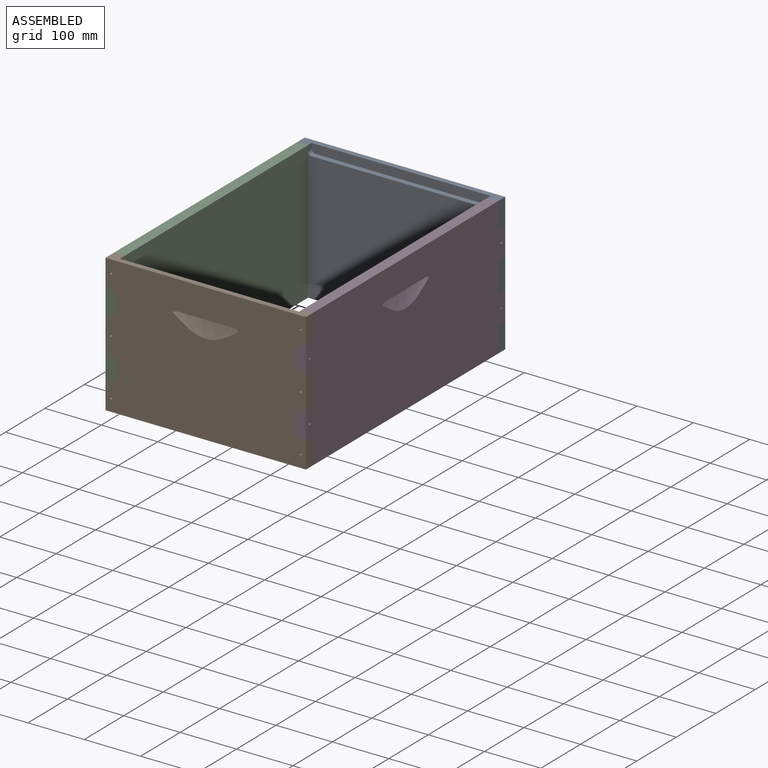
[diagram: assembled view]
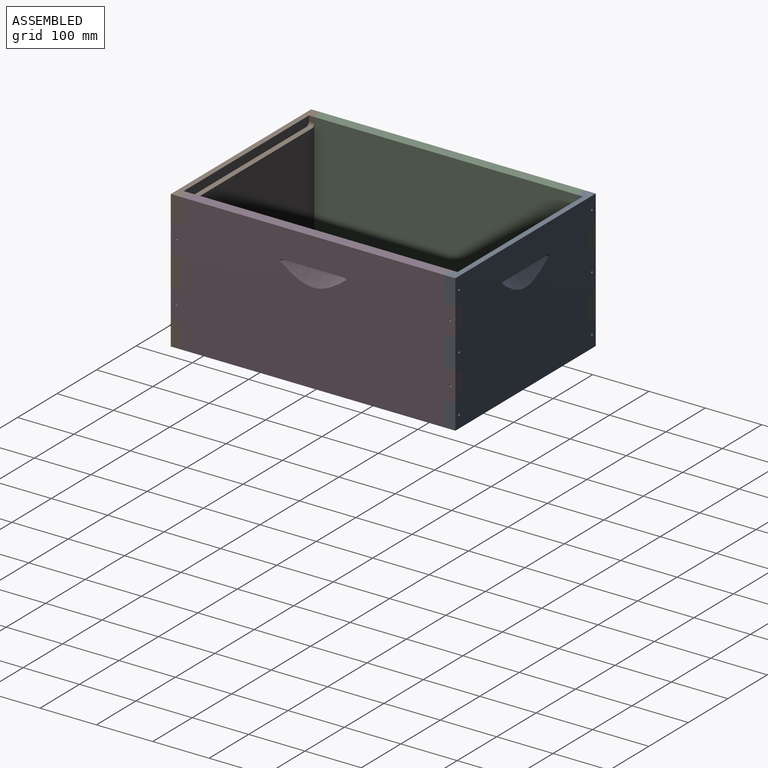
[diagram: assembled view, second angle]
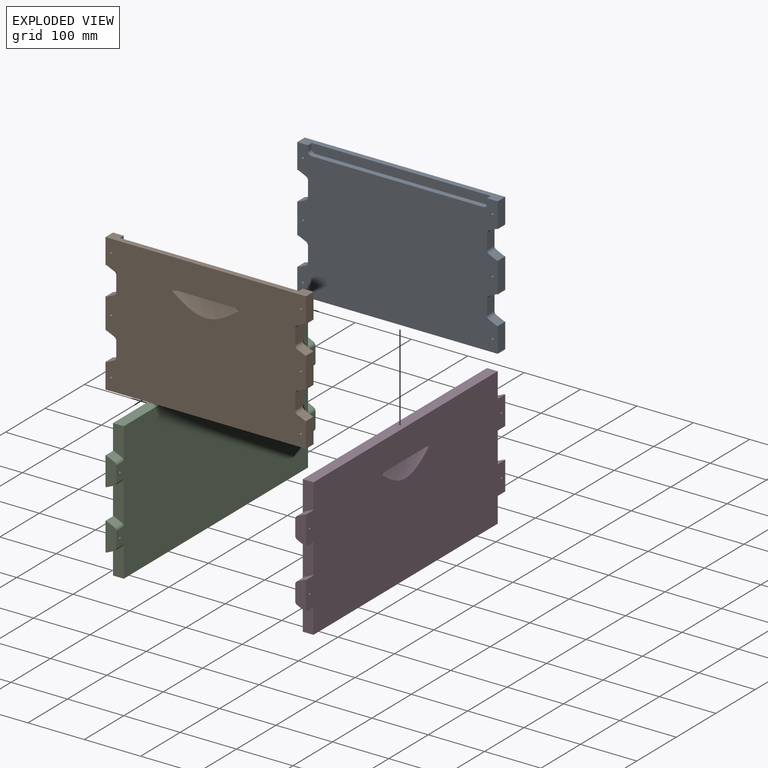
[diagram: exploded view]
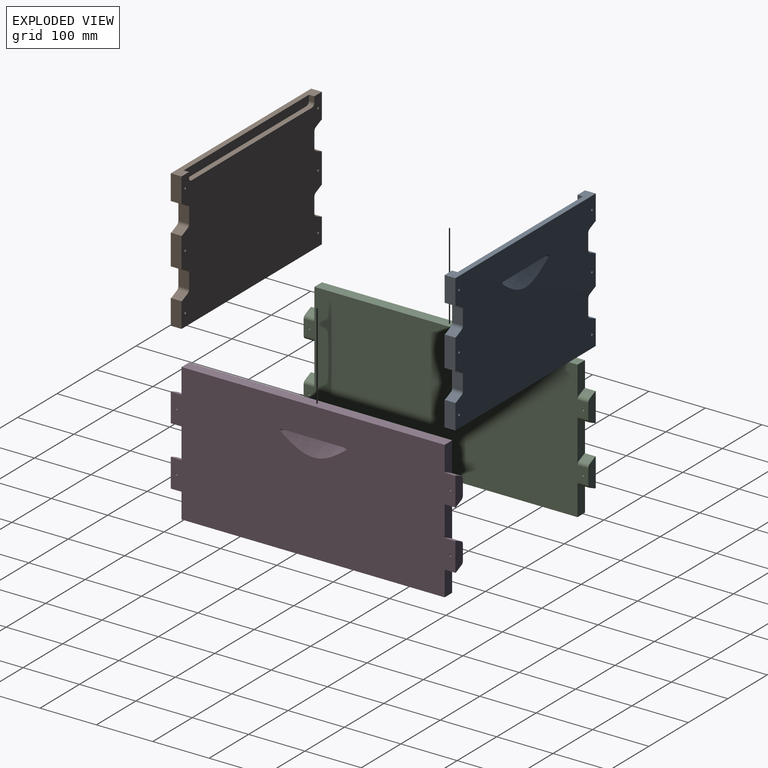
[diagram: exploded view, second angle]
ASSEMBLY  parts=4 mates=3
PART A: 61 faces, bbox 355.6x28.9x244.5 mm
  f0: plane 355.6x244.48mm, normal (0,1,0), area 81110.8mm2, adj f1,f2,f3,f4,f5,f6,f7,f8
  f1: plane 355.6x19.05mm, normal (0,0,1), area 3750mm2, adj f0,f2,f3,f45,f47,f48,f51
  f2: plane 44.45x19.05mm, normal (1,0,0), area 846.8mm2, adj f0,f1,f44,f45
  f3: plane 44.45x19.05mm, normal (-1,0,0), area 846.8mm2, adj f0,f1,f4,f45
  f4: plane 19.05x0.21mm, normal (0,0,-1), area 4mm2, adj f0,f3,f5,f45
  f5: cylinder r=6.35mm len=19.05mm, axis (0,-1,0), area 51.6mm2, adj f0,f4,f6,f45
  f6: plane 19.05x12.49mm, normal (-0.41,0,-0.91), area 261.3mm2, adj f0,f5,f7,f45
  f7: cylinder r=6.35mm len=19.05mm, axis (0,-1,0), area 138.4mm2, adj f0,f6,f8,f45
  f8: plane 26.75x19.05mm, normal (-1,0,0), area 509.5mm2, adj f0,f7,f9,f45
  f9: cylinder r=6.35mm len=19.05mm, axis (0,-1,0), area 138.4mm2, adj f0,f8,f10,f45
  f10: plane 19.05x12.49mm, normal (-0.41,0,0.91), area 261.3mm2, adj f0,f9,f11,f45
  f11: cylinder r=6.35mm len=19.05mm, axis (0,-1,0), area 51.6mm2, adj f0,f10,f12,f45
  f12: plane 19.05x0.21mm, normal (0,0,1), area 4mm2, adj f0,f11,f13,f45
  f13: plane 53.98x19.05mm, normal (-1,0,0), area 1028.2mm2, adj f0,f12,f14,f45
  f14: plane 19.05x0.21mm, normal (0,0,-1), area 4mm2, adj f0,f13,f15,f45
  f15: cylinder r=6.35mm len=19.05mm, axis (0,-1,0), area 51.6mm2, adj f0,f14,f16,f45
  f16: plane 19.05x12.49mm, normal (-0.41,0,-0.91), area 261.3mm2, adj f0,f15,f17,f45
  f17: cylinder r=6.35mm len=19.05mm, axis (0,-1,0), area 138.4mm2, adj f0,f16,f18,f45
  f18: plane 26.75x19.05mm, normal (-1,0,0), area 509.5mm2, adj f0,f17,f19,f45
  f19: cylinder r=6.35mm len=19.05mm, axis (0,-1,0), area 138.4mm2, adj f0,f18,f20,f45
  f20: plane 19.05x12.49mm, normal (-0.41,0,0.91), area 261.3mm2, adj f0,f19,f21,f45
  f21: cylinder r=6.35mm len=19.05mm, axis (0,-1,0), area 51.6mm2, adj f0,f20,f22,f45
  f22: plane 19.05x0.21mm, normal (0,0,1), area 4mm2, adj f0,f21,f23,f45
  f23: plane 44.45x19.05mm, normal (-1,0,0), area 846.8mm2, adj f0,f22,f24,f45
  f24: plane 355.6x19.05mm, normal (0,0,-1), area 6774.2mm2, adj f0,f23,f25,f45
  f25: plane 44.45x19.05mm, normal (1,0,0), area 846.8mm2, adj f0,f24,f26,f45
  f26: plane 19.05x0.21mm, normal (0,0,1), area 4mm2, adj f0,f25,f27,f45
  f27: cylinder r=6.35mm len=19.05mm, axis (0,-1,0), area 51.6mm2, adj f0,f26,f28,f45
  f28: plane 19.05x12.49mm, normal (0.41,0,0.91), area 261.3mm2, adj f0,f27,f29,f45
  f29: cylinder r=6.35mm len=19.05mm, axis (0,-1,0), area 138.4mm2, adj f0,f28,f30,f45
  f30: plane 26.75x19.05mm, normal (1,0,0), area 509.5mm2, adj f0,f29,f31,f45
  f31: cylinder r=6.35mm len=19.05mm, axis (0,-1,0), area 138.4mm2, adj f0,f30,f32,f45
  f32: plane 19.05x12.49mm, normal (0.41,0,-0.91), area 261.3mm2, adj f0,f31,f33,f45
  f33: cylinder r=6.35mm len=19.05mm, axis (0,-1,0), area 51.6mm2, adj f0,f32,f34,f45
  f34: plane 19.05x0.21mm, normal (0,0,-1), area 4mm2, adj f0,f33,f35,f45
  f35: plane 53.98x19.05mm, normal (1,0,0), area 1028.2mm2, adj f0,f34,f36,f45
  f36: plane 19.05x0.21mm, normal (0,0,1), area 4mm2, adj f0,f35,f37,f45
  f37: cylinder r=6.35mm len=19.05mm, axis (0,-1,0), area 51.6mm2, adj f0,f36,f38,f45
  f38: plane 19.05x12.49mm, normal (0.41,0,0.91), area 261.3mm2, adj f0,f37,f39,f45
  f39: cylinder r=6.35mm len=19.05mm, axis (0,-1,0), area 138.4mm2, adj f0,f38,f40,f45
  f40: plane 26.75x19.05mm, normal (1,0,0), area 509.5mm2, adj f0,f39,f41,f45
  f41: cylinder r=6.35mm len=19.05mm, axis (0,-1,0), area 138.4mm2, adj f0,f40,f42,f45
  f42: plane 19.05x12.49mm, normal (0.41,0,-0.91), area 261.3mm2, adj f0,f41,f43,f45
  f43: cylinder r=6.35mm len=19.05mm, axis (0,-1,0), area 51.6mm2, adj f0,f42,f44,f45
  f44: plane 19.05x0.21mm, normal (0,0,-1), area 4mm2, adj f0,f2,f43,f45
  f45: plane 355.6x244.48mm, normal (0,-1,0), area 78545.8mm2, adj f1,f2,f3,f4,f5,f6,f7,f8
  f46: cylinder r=6.35mm len=9.53mm, axis (0,-1,0), area 95mm2, adj f45,f47,f50,f51
  f47: plane 9.53x9.53mm, normal (-1,0,0), area 90.7mm2, adj f1,f45,f46,f51
  f48: plane 9.53x9.53mm, normal (1,0,0), area 90.7mm2, adj f1,f45,f49,f51
  f49: cylinder r=6.35mm len=9.53mm, axis (0,-1,0), area 95mm2, adj f45,f48,f50,f51
  f50: plane 304.8x9.53mm, normal (0,0,1), area 2903.2mm2, adj f45,f46,f49,f51
  f51: plane 317.5x15.88mm, normal (0,-1,0), area 5023mm2, adj f1,f46,f47,f48,f49,f50
  f52: cylinder r=1.98mm len=19.05mm, axis (0,-1,0), area 237.5mm2, adj f0,f45
  f53: cylinder r=1.98mm len=19.05mm, axis (0,-1,0), area 237.5mm2, adj f0,f45
  f54: cylinder r=1.98mm len=19.05mm, axis (0,-1,0), area 237.5mm2, adj f0,f45
  f55: cylinder r=1.98mm len=19.05mm, axis (0,-1,0), area 237.5mm2, adj f0,f45
  f56: cylinder r=1.98mm len=19.05mm, axis (0,-1,0), area 237.5mm2, adj f0,f45
  f57: cylinder r=1.98mm len=19.05mm, axis (0,-1,0), area 237.5mm2, adj f0,f45
  f58: plane 118.49x12.7mm, normal (0,-0.5,-0.87), area 1172.5mm2, adj f0,f59
  f59: cone r=127mm half-angle=30deg, axis (0,0.5,0.87), area 390.2mm2, adj f0,f58,f60
  f60: cone r=125.41mm half-angle=50deg, axis (0,0.5,0.87), area 2880.2mm2, adj f0,f59
PART B: same geometry as A
PART C: 53 faces, bbox 28.9x504.8x244.5 mm
  f0: plane 504.83x244.48mm, normal (1,0,0), area 115465.9mm2, adj f1,f2,f4,f5,f6,f7,f8,f9
  f1: plane 56.48x19.05mm, normal (0,1,0), area 919.1mm2, adj f0,f3,f7,f38,f39,f40,f41
  f2: plane 56.48x19.05mm, normal (0,1,0), area 919.1mm2, adj f0,f3,f4,f28,f29,f30,f31
  f3: plane 504.83x244.48mm, normal (-1,0,0), area 116091.3mm2, adj f1,f2,f4,f5,f6,f7,f8,f9
  f4: plane 466.73x19.05mm, normal (0,0,1), area 8891.1mm2, adj f0,f2,f3,f5
  f5: plane 56.48x19.05mm, normal (0,-1,0), area 919.1mm2, adj f0,f3,f4,f10,f11,f12,f13
  f6: plane 78.03x19.05mm, normal (0,1,0), area 1172.9mm2, adj f0,f3,f32,f33,f34,f35,f37,f42
  f7: plane 466.73x19.05mm, normal (0,0,-1), area 8891.1mm2, adj f0,f1,f3,f8
  f8: plane 56.48x19.05mm, normal (0,-1,0), area 919.1mm2, adj f0,f3,f7,f20,f21,f22,f23
  f9: plane 78.03x19.05mm, normal (0,-1,0), area 1172.9mm2, adj f0,f3,f14,f15,f16,f17,f19,f24
  f10: cylinder r=6.35mm len=19.05mm, axis (0,1,0), area 138.4mm2, adj f3,f5,f11,f18
  f11: plane 19.05x12.49mm, normal (-0.41,0,0.91), area 261.3mm2, adj f5,f10,f12,f18
  f12: cylinder r=6.35mm len=19.05mm, axis (0,1,0), area 51.6mm2, adj f5,f11,f13,f18
  f13: plane 19.05x0.21mm, normal (0,0,1), area 4mm2, adj f0,f5,f12,f18
  f14: plane 19.05x0.21mm, normal (0,0,-1), area 4mm2, adj f0,f9,f15,f18
  f15: cylinder r=6.35mm len=19.05mm, axis (0,1,0), area 51.6mm2, adj f9,f14,f16,f18
  f16: plane 19.05x12.49mm, normal (-0.41,0,-0.91), area 261.3mm2, adj f9,f15,f17,f18
  f17: cylinder r=6.35mm len=19.05mm, axis (0,1,0), area 138.4mm2, adj f3,f9,f16,f18
  f18: plane 50.8x19.05mm, normal (0,-1,0), area 823.1mm2, adj f0,f3,f10,f11,f12,f13,f14,f15
  f19: plane 19.05x0.21mm, normal (0,0,1), area 4mm2, adj f0,f9,f26,f27
  f20: plane 19.05x0.21mm, normal (0,0,-1), area 4mm2, adj f0,f8,f21,f27
  f21: cylinder r=6.35mm len=19.05mm, axis (0,1,0), area 51.6mm2, adj f8,f20,f22,f27
  f22: plane 19.05x12.49mm, normal (-0.41,0,-0.91), area 261.3mm2, adj f8,f21,f23,f27
  f23: cylinder r=6.35mm len=19.05mm, axis (0,1,0), area 138.4mm2, adj f3,f8,f22,f27
  f24: cylinder r=6.35mm len=19.05mm, axis (0,1,0), area 138.4mm2, adj f3,f9,f25,f27
  f25: plane 19.05x12.49mm, normal (-0.41,0,0.91), area 261.3mm2, adj f9,f24,f26,f27
  f26: cylinder r=6.35mm len=19.05mm, axis (0,1,0), area 51.6mm2, adj f9,f19,f25,f27
  f27: plane 50.8x19.05mm, normal (0,-1,0), area 823.1mm2, adj f0,f3,f19,f20,f21,f22,f23,f24
  f28: cylinder r=6.35mm len=19.05mm, axis (0,-1,0), area 138.4mm2, adj f2,f3,f29,f36
  f29: plane 19.05x12.49mm, normal (-0.41,0,0.91), area 261.3mm2, adj f2,f28,f30,f36
  f30: cylinder r=6.35mm len=19.05mm, axis (0,-1,0), area 51.6mm2, adj f2,f29,f31,f36
  f31: plane 19.05x0.21mm, normal (0,0,1), area 4mm2, adj f0,f2,f30,f36
  f32: plane 19.05x0.21mm, normal (0,0,-1), area 4mm2, adj f0,f6,f33,f36
  f33: cylinder r=6.35mm len=19.05mm, axis (0,-1,0), area 51.6mm2, adj f6,f32,f34,f36
  f34: plane 19.05x12.49mm, normal (-0.41,0,-0.91), area 261.3mm2, adj f6,f33,f35,f36
  f35: cylinder r=6.35mm len=19.05mm, axis (0,-1,0), area 138.4mm2, adj f3,f6,f34,f36
  f36: plane 50.8x19.05mm, normal (0,1,0), area 823.1mm2, adj f0,f3,f28,f29,f30,f31,f32,f33
  f37: plane 19.05x0.21mm, normal (0,0,1), area 4mm2, adj f0,f6,f44,f45
  f38: plane 19.05x0.21mm, normal (0,0,-1), area 4mm2, adj f0,f1,f39,f45
  f39: cylinder r=6.35mm len=19.05mm, axis (0,-1,0), area 51.6mm2, adj f1,f38,f40,f45
  f40: plane 19.05x12.49mm, normal (-0.41,0,-0.91), area 261.3mm2, adj f1,f39,f41,f45
  f41: cylinder r=6.35mm len=19.05mm, axis (0,-1,0), area 138.4mm2, adj f1,f3,f40,f45
  f42: cylinder r=6.35mm len=19.05mm, axis (0,-1,0), area 138.4mm2, adj f3,f6,f43,f45
  f43: plane 19.05x12.49mm, normal (-0.41,0,0.91), area 261.3mm2, adj f6,f42,f44,f45
  f44: cylinder r=6.35mm len=19.05mm, axis (0,-1,0), area 51.6mm2, adj f6,f37,f43,f45
  f45: plane 50.8x19.05mm, normal (0,1,0), area 823.1mm2, adj f0,f3,f37,f38,f39,f40,f41,f42
  f46: cylinder r=1.98mm len=19.05mm, axis (1,0,0), area 237.5mm2, adj f0,f3
  f47: cylinder r=1.98mm len=19.05mm, axis (1,0,0), area 237.5mm2, adj f0,f3
  f48: cylinder r=1.98mm len=19.05mm, axis (1,0,0), area 237.5mm2, adj f0,f3
  f49: cylinder r=1.98mm len=19.05mm, axis (1,0,0), area 237.5mm2, adj f0,f3
  f50: plane 118.49x12.7mm, normal (-0.5,0,-0.87), area 1172.5mm2, adj f0,f51
  f51: cone r=127mm half-angle=30deg, axis (0.5,0,0.87), area 390.2mm2, adj f0,f50,f52
  f52: cone r=125.41mm half-angle=50deg, axis (0.5,0,0.87), area 2880.3mm2, adj f0,f51
PART D: same geometry as C
PLACE A t=(25.4,0,0)mm
PLACE B rot(axis=(0,0,1),180deg) t=(25.4,-466.73,0)mm
PLACE C rot(axis=(0,0,1),180deg) t=(50.8,-466.73,0)mm
PLACE D at identity fixed
MATE fastened A.f1 <-> D.f4  axis (0,0,1) through (203.2,0,122.24)mm
MATE fastened B.f1 <-> D.f4  axis (0,0,1) through (203.2,-466.73,122.24)mm
MATE fastened C.f4 <-> A.f1  axis (0,0,1) through (-152.4,0,122.24)mm
